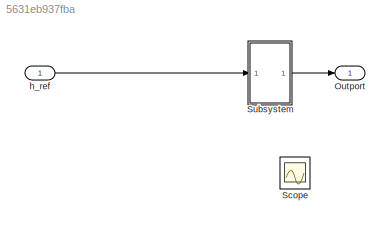
MODEL slx_5631eb937fba
KIND model
CONFIG AbsTol = auto
CONFIG EnableMultiTasking = on
CONFIG FixedStep = Ts
CONFIG MaxStep = auto
CONFIG MinStep = auto
CONFIG RelTol = 1e-3
CONFIG SampleTimeConstraint = Unconstrained
CONFIG SolverName = FixedStepAuto
CONFIG StartTime = 0
CONFIG StopTime = T
BLOCK [Outport] Outport
BLOCK [Scope] Scope
  Floating = off
  IOType = viewer
  NumInputPorts = 1
  Ports = []
  ScopeSpecificationString = Simulink.scopes.TimeScopeBlockCfg('CurrentConfiguration', extmgr.ConfigurationSet(extmgr.Configuration('Core','General UI',true),extmgr.Configuration('Core','Source UI',true),extmgr.Configuration('Sources','WiredSimulink',true),extmgr.Configuration('Visuals','Time Domain',true,'SerializedDisplays',{struct('MinYLimReal','1.64702','MaxYLimReal','21.18944','YLabelReal','','MinYLimMag','0.00000','MaxY...<+2648ch>
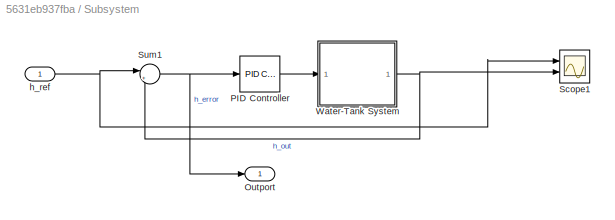
BLOCK [SubSystem] Subsystem
  Ports = [1, 1]
  RequestExecContextInheritance = off
BLOCK [Outport] Subsystem/Outport
BLOCK [Reference] Subsystem/PID Controller  REF=pid_lib/PID Controller
  Ports = [1, 1]
  SourceBlock = pid_lib/PID Controller
  SourceProductBaseCode = SL
  SourceType = PID 1dof
BLOCK [Scope] Subsystem/Scope1
  Floating = off
  NumInputPorts = 2
  Ports = [2]
  ScopeSpecificationString = Simulink.scopes.TimeScopeBlockCfg('CurrentConfiguration', extmgr.ConfigurationSet(extmgr.Configuration('Core','General UI',true),extmgr.Configuration('Core','Source UI',true),extmgr.Configuration('Sources','WiredSimulink',true,'DataLoggingVariableName','ScopeData1'),extmgr.Configuration('Visuals','Time Domain',true,'SerializedDisplays',{struct('MinYLimReal','-2.58567','MaxYLimReal','23.27101','YLa...<+1405ch>
BLOCK [Sum] Subsystem/Sum1
  Inputs = |+-
  Ports = [2, 1]
  SaturateOnIntegerOverflow = on
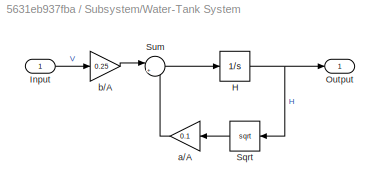
BLOCK [SubSystem] Subsystem/Water-Tank System
  Ports = [1, 1]
  RequestExecContextInheritance = off
BLOCK [Integrator] Subsystem/Water-Tank System/H
  InitialCondition = 3
  LimitOutput = on
  LowerSaturationLimit = 0
  Ports = [1, 1]
BLOCK [Inport] Subsystem/Water-Tank System/Input
BLOCK [Outport] Subsystem/Water-Tank System/Output
  VectorParamsAs1DForOutWhenUnconnected = off
BLOCK [Sqrt] Subsystem/Water-Tank System/Sqrt
  NameLocation = top
  OutputSignalType = real
BLOCK [Sum] Subsystem/Water-Tank System/Sum
  Inputs = |+-
  Ports = [2, 1]
  SaturateOnIntegerOverflow = on
BLOCK [Gain] Subsystem/Water-Tank System/a//A
  Gain = 0.1
  OutDataTypeStr = Inherit: Same as input
  ParamDataTypeStr = Inherit: Same as input
  SaturateOnIntegerOverflow = on
BLOCK [Gain] Subsystem/Water-Tank System/b//A
  Gain = 0.25
  OutDataTypeStr = Inherit: Same as input
  ParamDataTypeStr = Inherit: Same as input
  SaturateOnIntegerOverflow = on
BLOCK [Inport] Subsystem/h_ref
BLOCK [Inport] h_ref
LINE Subsystem/PID Controller:1 -> Subsystem/Water-Tank System:1
NET Subsystem/Sum1:1 -> Subsystem/Outport:1, Subsystem/PID Controller:1
NET Subsystem/Water-Tank System/H:1 -> Subsystem/Water-Tank System/Output:1, Subsystem/Water-Tank System/Sqrt:1
LINE Subsystem/Water-Tank System/Input:1 -> Subsystem/Water-Tank System/b//A:1
LINE Subsystem/Water-Tank System/Sqrt:1 -> Subsystem/Water-Tank System/a//A:1
LINE Subsystem/Water-Tank System/Sum:1 -> Subsystem/Water-Tank System/H:1
LINE Subsystem/Water-Tank System/a//A:1 -> Subsystem/Water-Tank System/Sum:2
LINE Subsystem/Water-Tank System/b//A:1 -> Subsystem/Water-Tank System/Sum:1
NET Subsystem/Water-Tank System:1 -> Subsystem/Scope1:2, Subsystem/Sum1:2
NET Subsystem/h_ref:1 -> Subsystem/Scope1:1, Subsystem/Sum1:1
LINE Subsystem:1 -> Outport:1
LINE h_ref:1 -> Subsystem:1
note: NET lines group one-source signal fan-out (src -> all destinations, sorted); 1:1 wires keep LINE
